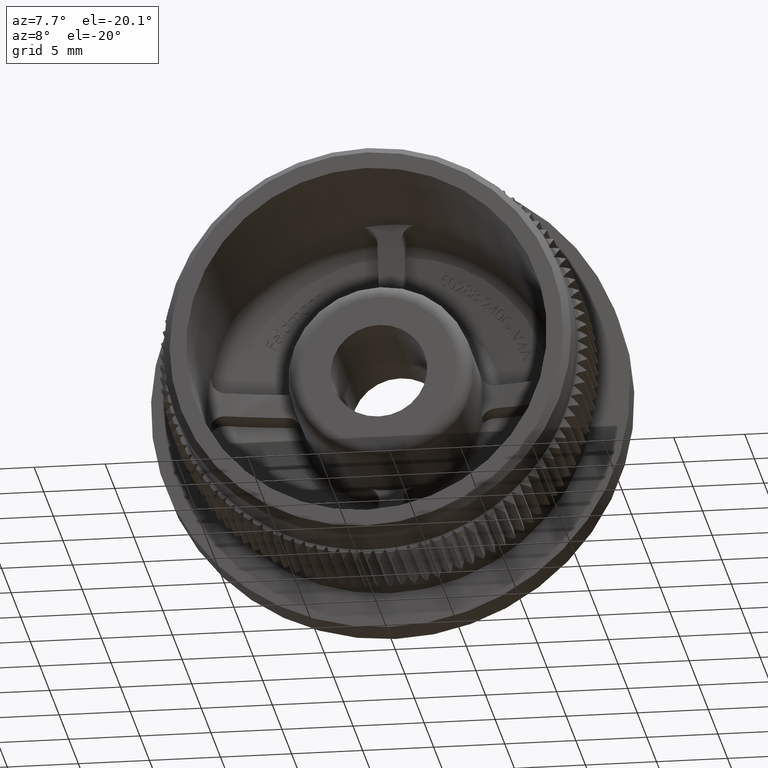
[diagram: clean part render]
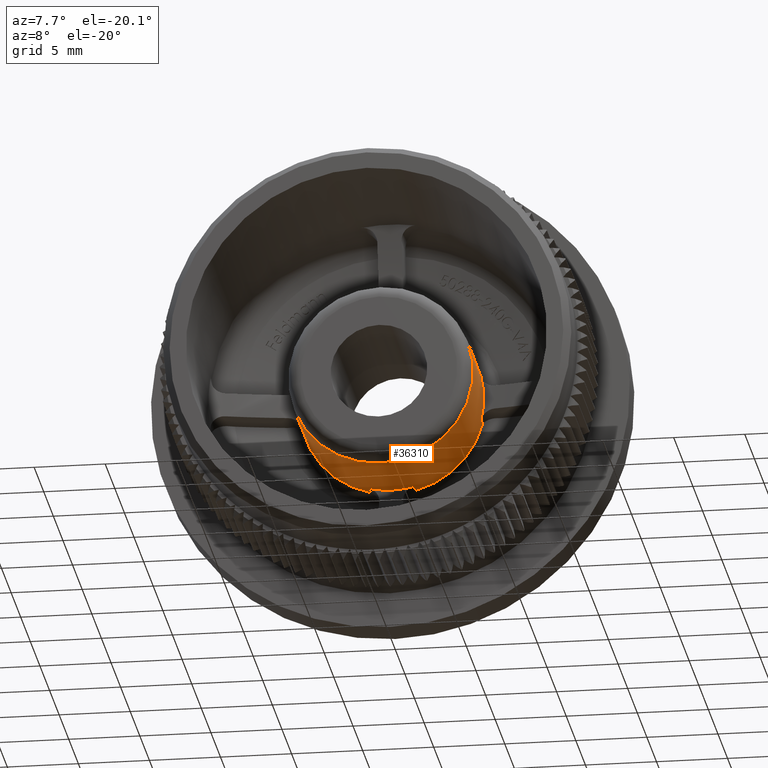
[diagram: same view with one face highlighted and labeled with its STEP entity id]
A machine part, auxiliary view. The second image highlights one B-rep face of the part: STEP entity #36310.
In plain terms, the highlighted cylindrical surface (bore or boss wall) has radius 6.5 mm, axis along (0, -1, 0).
Its self-contained STEP definition (entity closure, byte-faithful):
#176 = VECTOR ( 'NONE', #16202, 1000.000000000000000 ) ;
#968 = CIRCLE ( 'NONE', #35325, 6.500000000000000900 ) ;
#1156 = CARTESIAN_POINT ( 'NONE',  ( 0.0000000000000000000, 13.01523743986631700, 0.0000000000000000000 ) ) ;
#1198 = CARTESIAN_POINT ( 'NONE',  ( 6.299152500314804100, 500000.0000000000600, 1.603333333333333700 ) ) ;
#1265 = DIRECTION ( 'NONE',  ( 0.0000000000000000000, 0.0000000000000000000, -1.000000000000000000 ) ) ;
#1395 = ORIENTED_EDGE ( 'NONE', *, *, #27687, .T. ) ;
#1793 = CARTESIAN_POINT ( 'NONE',  ( -6.299152500314804100, 500000.0000000000600, 1.603333333333333700 ) ) ;
#2090 = CARTESIAN_POINT ( 'NONE',  ( 6.299152500314804100, 13.86804053851165000, 1.603333333333333700 ) ) ;
#2133 = CARTESIAN_POINT ( 'NONE',  ( 0.0000000000000000000, 13.01523743986631700, 0.0000000000000000000 ) ) ;
#2347 = DIRECTION ( 'NONE',  ( -0.0000000000000000000, -1.000000000000000000, -0.0000000000000000000 ) ) ;
#2591 = AXIS2_PLACEMENT_3D ( 'NONE', #9323, #36571, #6267 ) ;
#2888 = ORIENTED_EDGE ( 'NONE', *, *, #30380, .F. ) ;
#2996 = CARTESIAN_POINT ( 'NONE',  ( 1.603333333333335100, 13.86804053851165000, -6.299152500314802300 ) ) ;
#3111 = DIRECTION ( 'NONE',  ( 0.0000000000000000000, 0.0000000000000000000, -1.000000000000000000 ) ) ;
#3315 = EDGE_CURVE ( 'NONE', #16942, #28677, #12135, .T. ) ;
#3661 = CIRCLE ( 'NONE', #2591, 6.500000000000000900 ) ;
#3764 = FACE_OUTER_BOUND ( 'NONE', #8089, .T. ) ;
#3891 = DIRECTION ( 'NONE',  ( 8.881784197001254300E-016, 0.0000000000000000000, -1.000000000000000000 ) ) ;
#3903 = DIRECTION ( 'NONE',  ( 0.0000000000000000000, -1.000000000000000000, 0.0000000000000000000 ) ) ;
#3934 = EDGE_CURVE ( 'NONE', #17197, #35512, #14407, .T. ) ;
#4521 = ORIENTED_EDGE ( 'NONE', *, *, #18877, .T. ) ;
#4629 = ORIENTED_EDGE ( 'NONE', *, *, #38152, .T. ) ;
#4791 = CARTESIAN_POINT ( 'NONE',  ( 0.0000000000000000000, 7.499999999993178800, 0.0000000000000000000 ) ) ;
#4849 = LINE ( 'NONE', #9164, #26920 ) ;
#5990 = CARTESIAN_POINT ( 'NONE',  ( 6.299152500314803200, 13.01523743986631700, 1.603333333333333500 ) ) ;
#6128 = CARTESIAN_POINT ( 'NONE',  ( 6.299152500314802300, 13.01523743986631700, -1.603333333333333300 ) ) ;
#6267 = DIRECTION ( 'NONE',  ( 0.0000000000000000000, 0.0000000000000000000, -1.000000000000000000 ) ) ;
#6291 = DIRECTION ( 'NONE',  ( 0.0000000000000000000, -1.000000000000000000, 0.0000000000000000000 ) ) ;
#6847 = CARTESIAN_POINT ( 'NONE',  ( 1.603333333333335100, 13.01523743986631700, -6.299152500314802300 ) ) ;
#7235 = CARTESIAN_POINT ( 'NONE',  ( 1.603333333333335100, 13.86804053851165000, 6.299152500314802300 ) ) ;
#7362 = DIRECTION ( 'NONE',  ( -0.0000000000000000000, 1.000000000000000000, -0.0000000000000000000 ) ) ;
#7499 = DIRECTION ( 'NONE',  ( 0.0000000000000000000, -1.000000000000000000, 0.0000000000000000000 ) ) ;
#7527 = DIRECTION ( 'NONE',  ( 0.0000000000000000000, 1.000000000000000000, 0.0000000000000000000 ) ) ;
#8089 = EDGE_LOOP ( 'NONE', ( #4521 ) ) ;
#8327 = EDGE_CURVE ( 'NONE', #33852, #21669, #16090, .T. ) ;
#8632 = CARTESIAN_POINT ( 'NONE',  ( -6.299152500314804100, 13.86804053851165000, -1.603333333333333700 ) ) ;
#9089 = CARTESIAN_POINT ( 'NONE',  ( -1.603333333333331700, 13.01523743986631700, 6.299152500314803200 ) ) ;
#9090 = CARTESIAN_POINT ( 'NONE',  ( 0.0000000000000000000, 13.86804053851165000, 0.0000000000000000000 ) ) ;
#9126 = CARTESIAN_POINT ( 'NONE',  ( -1.603333333333331700, 13.86804053851165000, -6.299152500314803200 ) ) ;
#9164 = CARTESIAN_POINT ( 'NONE',  ( 1.603333333333335100, 500000.0000000000600, -6.299152500314802300 ) ) ;
#9219 = DIRECTION ( 'NONE',  ( -0.0000000000000000000, -1.000000000000000000, -0.0000000000000000000 ) ) ;
#9323 = CARTESIAN_POINT ( 'NONE',  ( 0.0000000000000000000, 13.86804053851165000, 0.0000000000000000000 ) ) ;
#9891 = FACE_OUTER_BOUND ( 'NONE', #16625, .T. ) ;
#10088 = AXIS2_PLACEMENT_3D ( 'NONE', #22004, #7499, #3111 ) ;
#10935 = CARTESIAN_POINT ( 'NONE',  ( 0.0000000000000000000, 13.01523743986631700, 0.0000000000000000000 ) ) ;
#10998 = CARTESIAN_POINT ( 'NONE',  ( -6.299152500314804100, 500000.0000000000600, -1.603333333333333700 ) ) ;
#11230 = DIRECTION ( 'NONE',  ( -0.0000000000000000000, -1.000000000000000000, -0.0000000000000000000 ) ) ;
#12135 = LINE ( 'NONE', #34174, #37966 ) ;
#12155 = VERTEX_POINT ( 'NONE', #38316 ) ;
#13195 = CARTESIAN_POINT ( 'NONE',  ( -1.603333333333331700, 500000.0000000000600, 6.299152500314804100 ) ) ;
#13662 = LINE ( 'NONE', #22408, #30592 ) ;
#14396 = VERTEX_POINT ( 'NONE', #28371 ) ;
#14407 = LINE ( 'NONE', #1198, #20065 ) ;
#14552 = CYLINDRICAL_SURFACE ( 'NONE', #10088, 6.500000000000000900 ) ;
#14665 = CIRCLE ( 'NONE', #22450, 6.500000000000000900 ) ;
#14766 = AXIS2_PLACEMENT_3D ( 'NONE', #35165, #2347, #17157 ) ;
#14848 = EDGE_CURVE ( 'NONE', #23555, #30198, #31812, .T. ) ;
#15223 = ORIENTED_EDGE ( 'NONE', *, *, #29825, .F. ) ;
#15306 = ORIENTED_EDGE ( 'NONE', *, *, #14848, .T. ) ;
#16065 = LINE ( 'NONE', #1793, #31598 ) ;
#16090 = LINE ( 'NONE', #13195, #176 ) ;
#16202 = DIRECTION ( 'NONE',  ( -0.0000000000000000000, 1.000000000000000000, -0.0000000000000000000 ) ) ;
#16433 = AXIS2_PLACEMENT_3D ( 'NONE', #10935, #7527, #34422 ) ;
#16625 = EDGE_LOOP ( 'NONE', ( #2888, #38667, #33843, #22663, #35997, #19869, #4629, #17420, #15223, #38449, #36042, #1395, #36654, #34007, #15306, #36350 ) ) ;
#16942 = VERTEX_POINT ( 'NONE', #7235 ) ;
#17104 = DIRECTION ( 'NONE',  ( -0.0000000000000000000, 1.000000000000000000, -0.0000000000000000000 ) ) ;
#17157 = DIRECTION ( 'NONE',  ( 0.0000000000000000000, 0.0000000000000000000, -1.000000000000000000 ) ) ;
#17197 = VERTEX_POINT ( 'NONE', #5990 ) ;
#17285 = VECTOR ( 'NONE', #6291, 1000.000000000000000 ) ;
#17331 = DIRECTION ( 'NONE',  ( 8.881784197001252300E-015, 0.0000000000000000000, -1.000000000000000000 ) ) ;
#17342 = LINE ( 'NONE', #10998, #27683 ) ;
#17420 = ORIENTED_EDGE ( 'NONE', *, *, #3315, .T. ) ;
#17621 = CARTESIAN_POINT ( 'NONE',  ( -6.299152500314803200, 13.01523743986631700, -1.603333333333333500 ) ) ;
#18657 = VERTEX_POINT ( 'NONE', #6128 ) ;
#18877 = EDGE_CURVE ( 'NONE', #14396, #14396, #21828, .T. ) ;
#18939 = DIRECTION ( 'NONE',  ( 0.0000000000000000000, -1.000000000000000000, 0.0000000000000000000 ) ) ;
#19683 = CIRCLE ( 'NONE', #23944, 6.500000000000000900 ) ;
#19869 = ORIENTED_EDGE ( 'NONE', *, *, #3934, .T. ) ;
#20007 = DIRECTION ( 'NONE',  ( 0.0000000000000000000, -1.000000000000000000, 0.0000000000000000000 ) ) ;
#20065 = VECTOR ( 'NONE', #7362, 1000.000000000000000 ) ;
#20267 = DIRECTION ( 'NONE',  ( 0.0000000000000000000, 0.0000000000000000000, -1.000000000000000000 ) ) ;
#20700 = AXIS2_PLACEMENT_3D ( 'NONE', #25173, #28157, #1265 ) ;
#20712 = CARTESIAN_POINT ( 'NONE',  ( -6.299152500314802300, 13.01523743986631700, 1.603333333333333300 ) ) ;
#21274 = CIRCLE ( 'NONE', #38281, 6.500000000000000900 ) ;
#21669 = VERTEX_POINT ( 'NONE', #25587 ) ;
#21828 = CIRCLE ( 'NONE', #22209, 6.500000000000000900 ) ;
#22004 = CARTESIAN_POINT ( 'NONE',  ( 0.0000000000000000000, 500000.0000000000600, 0.0000000000000000000 ) ) ;
#22209 = AXIS2_PLACEMENT_3D ( 'NONE', #4791, #17104, #37864 ) ;
#22408 = CARTESIAN_POINT ( 'NONE',  ( -1.603333333333331700, 500000.0000000000600, -6.299152500314804100 ) ) ;
#22450 = AXIS2_PLACEMENT_3D ( 'NONE', #32103, #11230, #20267 ) ;
#22663 = ORIENTED_EDGE ( 'NONE', *, *, #32398, .T. ) ;
#22703 = CARTESIAN_POINT ( 'NONE',  ( -1.603333333333331700, 13.01523743986631700, -6.299152500314803200 ) ) ;
#23555 = VERTEX_POINT ( 'NONE', #8632 ) ;
#23560 = CIRCLE ( 'NONE', #20700, 6.500000000000000900 ) ;
#23759 = CARTESIAN_POINT ( 'NONE',  ( 1.603333333333335100, 13.01523743986631700, 6.299152500314802300 ) ) ;
#23944 = AXIS2_PLACEMENT_3D ( 'NONE', #1156, #34070, #3891 ) ;
#24186 = VERTEX_POINT ( 'NONE', #6847 ) ;
#24748 = VERTEX_POINT ( 'NONE', #22703 ) ;
#25173 = CARTESIAN_POINT ( 'NONE',  ( 0.0000000000000000000, 13.01523743986631700, 0.0000000000000000000 ) ) ;
#25587 = CARTESIAN_POINT ( 'NONE',  ( -1.603333333333331700, 13.86804053851165000, 6.299152500314803200 ) ) ;
#26920 = VECTOR ( 'NONE', #30525, 1000.000000000000000 ) ;
#27223 = EDGE_CURVE ( 'NONE', #24186, #34388, #4849, .T. ) ;
#27683 = VECTOR ( 'NONE', #27902, 1000.000000000000000 ) ;
#27687 = EDGE_CURVE ( 'NONE', #12155, #29607, #16065, .T. ) ;
#27750 = EDGE_CURVE ( 'NONE', #21669, #12155, #14665, .T. ) ;
#27902 = DIRECTION ( 'NONE',  ( -0.0000000000000000000, 1.000000000000000000, -0.0000000000000000000 ) ) ;
#28157 = DIRECTION ( 'NONE',  ( 0.0000000000000000000, 1.000000000000000000, 0.0000000000000000000 ) ) ;
#28208 = EDGE_CURVE ( 'NONE', #17197, #18657, #21274, .T. ) ;
#28371 = CARTESIAN_POINT ( 'NONE',  ( 0.0000000000000000000, 7.499999999993178800, -6.500000000000000900 ) ) ;
#28677 = VERTEX_POINT ( 'NONE', #23759 ) ;
#29607 = VERTEX_POINT ( 'NONE', #20712 ) ;
#29825 = EDGE_CURVE ( 'NONE', #33852, #28677, #23560, .T. ) ;
#30198 = VERTEX_POINT ( 'NONE', #9126 ) ;
#30380 = EDGE_CURVE ( 'NONE', #24186, #24748, #32909, .T. ) ;
#30525 = DIRECTION ( 'NONE',  ( -0.0000000000000000000, 1.000000000000000000, -0.0000000000000000000 ) ) ;
#30585 = EDGE_CURVE ( 'NONE', #34388, #38524, #968, .T. ) ;
#30592 = VECTOR ( 'NONE', #3903, 1000.000000000000000 ) ;
#31598 = VECTOR ( 'NONE', #20007, 1000.000000000000000 ) ;
#31812 = CIRCLE ( 'NONE', #14766, 6.500000000000000900 ) ;
#31967 = CARTESIAN_POINT ( 'NONE',  ( 6.299152500314804100, 13.86804053851165000, -1.603333333333333700 ) ) ;
#32103 = CARTESIAN_POINT ( 'NONE',  ( 0.0000000000000000000, 13.86804053851165000, 0.0000000000000000000 ) ) ;
#32398 = EDGE_CURVE ( 'NONE', #38524, #18657, #33273, .T. ) ;
#32560 = DIRECTION ( 'NONE',  ( 0.0000000000000000000, 0.0000000000000000000, -1.000000000000000000 ) ) ;
#32909 = CIRCLE ( 'NONE', #16433, 6.500000000000000900 ) ;
#33273 = LINE ( 'NONE', #35835, #17285 ) ;
#33843 = ORIENTED_EDGE ( 'NONE', *, *, #30585, .T. ) ;
#33852 = VERTEX_POINT ( 'NONE', #9089 ) ;
#34007 = ORIENTED_EDGE ( 'NONE', *, *, #36873, .T. ) ;
#34070 = DIRECTION ( 'NONE',  ( 0.0000000000000000000, 1.000000000000000000, 0.0000000000000000000 ) ) ;
#34174 = CARTESIAN_POINT ( 'NONE',  ( 1.603333333333335100, 500000.0000000000600, 6.299152500314802300 ) ) ;
#34388 = VERTEX_POINT ( 'NONE', #2996 ) ;
#34422 = DIRECTION ( 'NONE',  ( 0.0000000000000000000, 0.0000000000000000000, -1.000000000000000000 ) ) ;
#34854 = VERTEX_POINT ( 'NONE', #17621 ) ;
#35165 = CARTESIAN_POINT ( 'NONE',  ( 0.0000000000000000000, 13.86804053851165000, 0.0000000000000000000 ) ) ;
#35325 = AXIS2_PLACEMENT_3D ( 'NONE', #9090, #9219, #32560 ) ;
#35512 = VERTEX_POINT ( 'NONE', #2090 ) ;
#35799 = EDGE_CURVE ( 'NONE', #30198, #24748, #13662, .T. ) ;
#35835 = CARTESIAN_POINT ( 'NONE',  ( 6.299152500314804100, 500000.0000000000600, -1.603333333333333700 ) ) ;
#35997 = ORIENTED_EDGE ( 'NONE', *, *, #28208, .F. ) ;
#36042 = ORIENTED_EDGE ( 'NONE', *, *, #27750, .T. ) ;
#36310 = ADVANCED_FACE ( 'NONE', ( #3764, #9891 ), #14552, .T. ) ;
#36350 = ORIENTED_EDGE ( 'NONE', *, *, #35799, .T. ) ;
#36571 = DIRECTION ( 'NONE',  ( -0.0000000000000000000, -1.000000000000000000, -0.0000000000000000000 ) ) ;
#36654 = ORIENTED_EDGE ( 'NONE', *, *, #36822, .F. ) ;
#36822 = EDGE_CURVE ( 'NONE', #34854, #29607, #19683, .T. ) ;
#36873 = EDGE_CURVE ( 'NONE', #34854, #23555, #17342, .T. ) ;
#37864 = DIRECTION ( 'NONE',  ( 0.0000000000000000000, 0.0000000000000000000, -1.000000000000000000 ) ) ;
#37966 = VECTOR ( 'NONE', #18939, 1000.000000000000000 ) ;
#38152 = EDGE_CURVE ( 'NONE', #35512, #16942, #3661, .T. ) ;
#38281 = AXIS2_PLACEMENT_3D ( 'NONE', #2133, #38451, #17331 ) ;
#38316 = CARTESIAN_POINT ( 'NONE',  ( -6.299152500314804100, 13.86804053851165000, 1.603333333333333700 ) ) ;
#38449 = ORIENTED_EDGE ( 'NONE', *, *, #8327, .T. ) ;
#38451 = DIRECTION ( 'NONE',  ( 0.0000000000000000000, 1.000000000000000000, 0.0000000000000000000 ) ) ;
#38524 = VERTEX_POINT ( 'NONE', #31967 ) ;
#38667 = ORIENTED_EDGE ( 'NONE', *, *, #27223, .T. ) ;